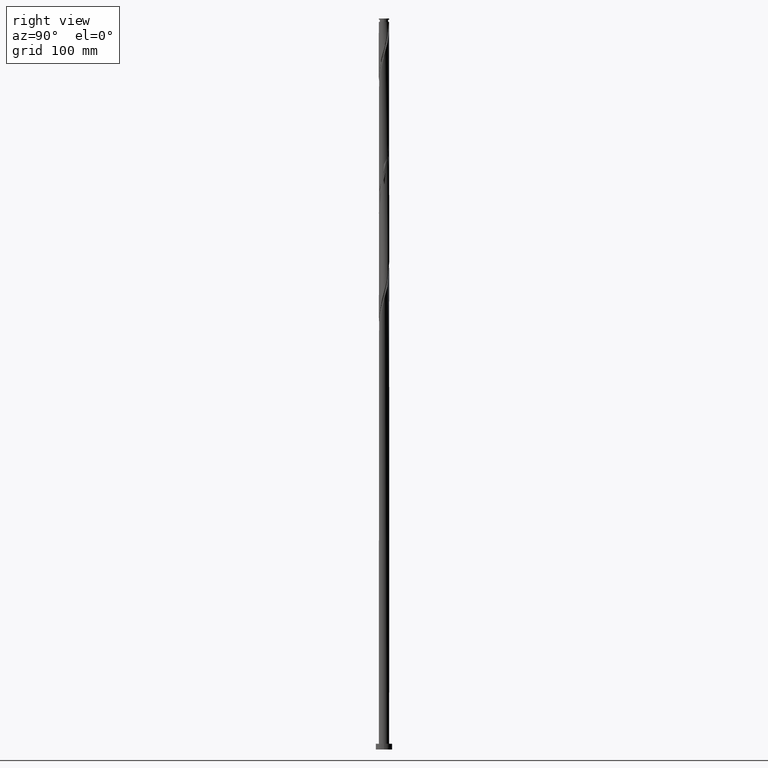
[diagram: clean part render]
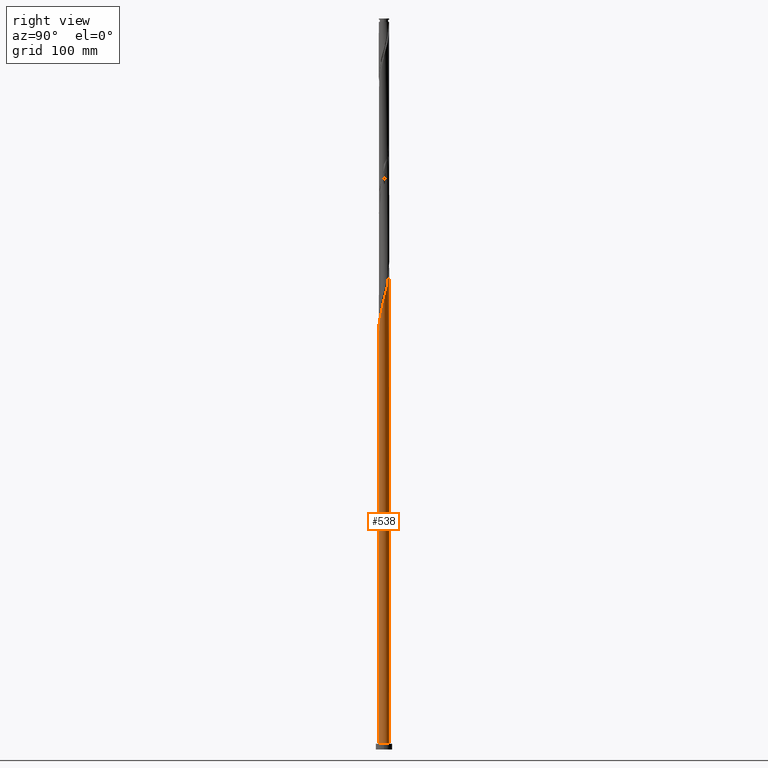
[diagram: same view with one face highlighted and labeled with its STEP entity id]
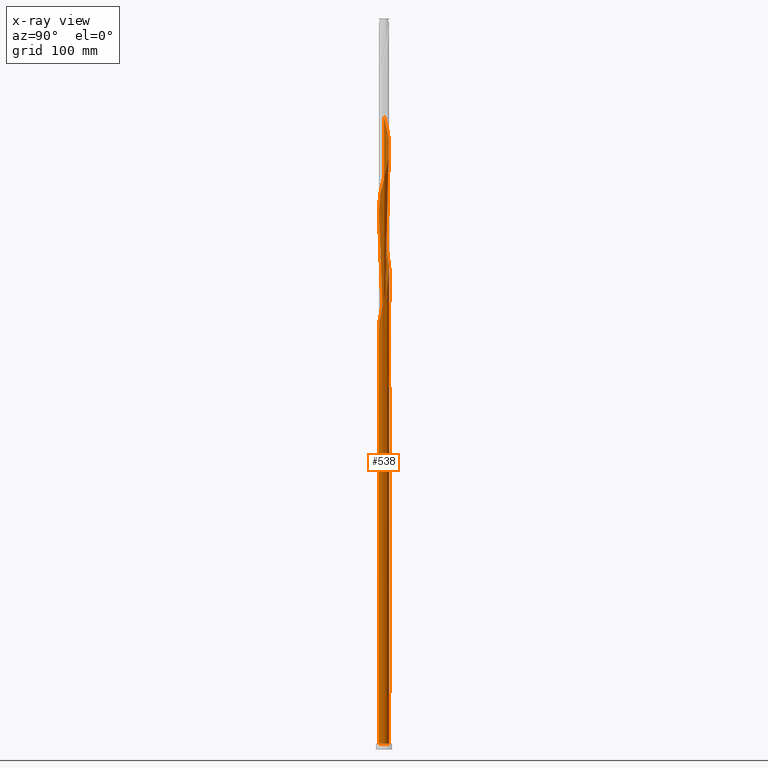
[diagram: x-ray of the same camera — body ghosted, the highlighted face saturated]
A machine part, right view. The second image highlights one B-rep face of the part: STEP entity #538.
The next image is the same camera in x-ray: the body ghosted, the highlighted face saturated — about 0% of this face is hidden behind the body in this view.
In plain terms, the highlighted cylindrical surface (bore or boss wall) has radius 4.5 mm, axis along (-0, -0, -1).
Its self-contained STEP definition (entity closure, byte-faithful):
#1 = CARTESIAN_POINT ( 'NONE',  ( -3.804945932574387513, -2.438496281464618498, 344.5328241358952823 ) ) ;
#4 = CARTESIAN_POINT ( 'NONE',  ( -1.951327360779627762, 4.076297240830688118, 322.9151770770716894 ) ) ;
#6 = DIRECTION ( 'NONE',  ( 0.000000000000000000, -0.000000000000000000, -1.000000000000000000 ) ) ;
#11 = CARTESIAN_POINT ( 'NONE',  ( -1.304135373323318081, 4.327020752501423040, 418.6504711947186479 ) ) ;
#26 = CARTESIAN_POINT ( 'NONE',  ( 4.188232013388924813, 1.697819267930281484, 498.9445888417775450 ) ) ;
#36 = CARTESIAN_POINT ( 'NONE',  ( -1.951327360779631981, -4.076297240830694335, 458.7975300182480964 ) ) ;
#48 = CARTESIAN_POINT ( 'NONE',  ( -4.238954249787265205, 1.566890083171638137, 434.0916476653071072 ) ) ;
#50 = CARTESIAN_POINT ( 'NONE',  ( 0.000000000000000000, 0.000000000000000000, 5.000000000000000000 ) ) ;
#61 = CARTESIAN_POINT ( 'NONE',  ( 1.690576670250395930, -4.170365753984312640, 472.6945888417775450 ) ) ;
#69 = CARTESIAN_POINT ( 'NONE',  ( -4.500000000000006217, 1.762771725222034300E-15, 545.0081447729659203 ) ) ;
#115 = CARTESIAN_POINT ( 'NONE',  ( 1.169084651843904865, 4.365445995697824877, 514.3857653123659475 ) ) ;
#119 = CARTESIAN_POINT ( 'NONE',  ( 2.779170205267879279, -3.563718652570996515, 372.3269417829540089 ) ) ;
#132 = CARTESIAN_POINT ( 'NONE',  ( 4.473812990118688049, 0.4847652312669875063, 389.3122359006010811 ) ) ;
#141 = CARTESIAN_POINT ( 'NONE',  ( -1.951327360779631981, -4.076297240830694335, 353.7975300182481533 ) ) ;
#148 = CARTESIAN_POINT ( 'NONE',  ( -2.779170205267879723, 3.563718652570996515, 319.8269417829541226 ) ) ;
#151 = CARTESIAN_POINT ( 'NONE',  ( 1.951327360779632869, 4.076297240830694335, 406.2975300182482101 ) ) ;
#168 = VERTEX_POINT ( 'NONE', #599 ) ;
#173 =( BOUNDED_CURVE ( )  B_SPLINE_CURVE ( 2, ( #433, #1700, #272, #1936, #502, #627, #1581, #2067, #1252, #1722, #481, #1890, #968, #4, #1900, #470, #1733, #805, #650, #949, #668 ),
 .UNSPECIFIED., .F., .T. ) 
 B_SPLINE_CURVE_WITH_KNOTS ( ( 3, 2, 2, 2, 2, 2, 2, 2, 2, 2, 3 ),
 ( 0.9295293573162903833, 0.9338235294117647189, 0.9411764705882352811, 0.9485294117647058432, 0.9558823529411765163, 0.9632352941176470784, 0.9705882352941176405, 0.9779411764705882026, 0.9852941176470588758, 0.9926470588235294379, 1.000000000000000000 ),
 .UNSPECIFIED. ) 
 CURVE ( )  GEOMETRIC_REPRESENTATION_ITEM ( )  RATIONAL_B_SPLINE_CURVE ( ( 0.9072066346053268004, 0.9068261157890937785, 0.9090909090909653489, 0.9052128875409962694, 0.9090909090909653489, 0.9052128875409962694, 0.9090909090909653489, 0.9052128875409962694, 0.9090909090909653489, 0.9052128875409962694, 0.9090909090909653489, 0.9052128875409962694, 0.9090909090909653489, 0.9052128875409962694, 0.9090909090909653489, 0.9052128875409962694, 0.9090909090909653489, 0.9052128875409962694, 0.9090909090909653489, 0.9052128875409962694, 0.9090909090909653489 ) ) 
 REPRESENTATION_ITEM ( '' )  );
#174 = CARTESIAN_POINT ( 'NONE',  ( 4.486713199802618846, -0.3455497977383251706, 491.2240006064834574 ) ) ;
#189 = CARTESIAN_POINT ( 'NONE',  ( -4.346823772686629006, 1.164097542822958742, 435.6357653123658906 ) ) ;
#199 = CARTESIAN_POINT ( 'NONE',  ( 2.979603469179447295, 3.372234150597175351, 506.6651770770715757 ) ) ;
#209 = CARTESIAN_POINT ( 'NONE',  ( 4.454693295585993695, -0.7613050024742795685, 489.6798829594246740 ) ) ;
#216 = VERTEX_POINT ( 'NONE', #1036 ) ;
#219 = CARTESIAN_POINT ( 'NONE',  ( -1.560206006311768201, -4.220871618264257386, 460.3416476653070504 ) ) ;
#221 = DIRECTION ( 'NONE',  ( 0.000000000000000000, 0.000000000000000000, 1.000000000000000000 ) ) ;
#229 = CARTESIAN_POINT ( 'NONE',  ( -4.346823772686629006, 1.164097542822958742, 540.6357653123658338 ) ) ;
#235 = VERTEX_POINT ( 'NONE', #2022 ) ;
#272 = CARTESIAN_POINT ( 'NONE',  ( -4.473812990118680055, 0.4847652312669873398, 339.9004711947186479 ) ) ;
#277 = LINE ( 'NONE', #1435, #695 ) ;
#285 = CARTESIAN_POINT ( 'NONE',  ( -4.454693295585993695, 0.7613050024742796795, 542.1798829594246172 ) ) ;
#288 = CARTESIAN_POINT ( 'NONE',  ( 0.4868420134686154976, -4.492979247498587902, 363.0622359006010811 ) ) ;
#298 = CARTESIAN_POINT ( 'NONE',  ( -0.3470301672521269865, -4.505934722956835614, 359.9740006064836280 ) ) ;
#311 = CARTESIAN_POINT ( 'NONE',  ( -0.7580574095480158148, -4.435690359327330690, 358.4298829594246172 ) ) ;
#317 = CARTESIAN_POINT ( 'NONE',  ( -3.082925670266514206, 3.278043518870946471, 321.3710594300127923 ) ) ;
#319 = CARTESIAN_POINT ( 'NONE',  ( -4.500000000000007105, 5.422763866572867830E-15, 335.0081447729658635 ) ) ;
#328 = CARTESIAN_POINT ( 'NONE',  ( -3.632771918171216807, 2.655742493267499782, 324.4592947241304728 ) ) ;
#331 = CARTESIAN_POINT ( 'NONE',  ( 3.878862701077282704, -2.319116601364103136, 483.5034123711894267 ) ) ;
#344 = CARTESIAN_POINT ( 'NONE',  ( -0.4868420134686149980, 4.492979247498587902, 415.5622359006011379 ) ) ;
#349 = CARTESIAN_POINT ( 'NONE',  ( -4.058908475432274621, 1.943003342267869638, 327.5475300182480396 ) ) ;
#352 = CARTESIAN_POINT ( 'NONE',  ( 0.06990592310824401967, -4.499456985227711314, 466.5181182535422977 ) ) ;
#361 = CARTESIAN_POINT ( 'NONE',  ( -4.428892876218131214, -0.8993250555363426768, 443.3563535476600350 ) ) ;
#373 = CARTESIAN_POINT ( 'NONE',  ( -3.386681135265150910, 2.992368385170897760, 427.9151770770716894 ) ) ;
#374 = EDGE_CURVE ( 'NONE', #454, #1556, #277, .T. ) ;
#383 = CARTESIAN_POINT ( 'NONE',  ( -1.304135373323318081, 4.327020752501423040, 523.6504711947188753 ) ) ;
#394 = AXIS2_PLACEMENT_3D ( 'NONE', #50, #221, #1814 ) ;
#396 = CARTESIAN_POINT ( 'NONE',  ( -3.632771918171216807, 2.655742493267499782, 534.4592947241304728 ) ) ;
#433 = CARTESIAN_POINT ( 'NONE',  ( -4.500000000000000000, -4.989540306984437354E-15, 341.7045623223539792 ) ) ;
#440 = CARTESIAN_POINT ( 'NONE',  ( -4.428892876218131214, -0.8993250555363426768, 338.3563535476599213 ) ) ;
#442 = ORIENTED_EDGE ( 'NONE', *, *, #1158, .F. ) ;
#447 = ORIENTED_EDGE ( 'NONE', *, *, #499, .F. ) ;
#449 = CARTESIAN_POINT ( 'NONE',  ( -3.082925670266514206, 3.278043518870946471, 531.3710594300127923 ) ) ;
#454 = VERTEX_POINT ( 'NONE', #319 ) ;
#460 = CARTESIAN_POINT ( 'NONE',  ( -4.238954249787265205, 1.566890083171638137, 539.0916476653069367 ) ) ;
#465 = CARTESIAN_POINT ( 'NONE',  ( 3.804945932574387957, 2.438496281464617610, 397.0328241358952823 ) ) ;
#470 = CARTESIAN_POINT ( 'NONE',  ( -1.169084651843902867, 4.365445995697816883, 319.8269417829540657 ) ) ;
#475 = CARTESIAN_POINT ( 'NONE',  ( 3.386681135265150022, -2.992368385170899092, 375.4151770770718599 ) ) ;
#481 = CARTESIAN_POINT ( 'NONE',  ( -2.979603469179440189, 3.372234150597171354, 327.5475300182480396 ) ) ;
#487 = CARTESIAN_POINT ( 'NONE',  ( 3.082925670266514651, -3.278043518870946027, 373.8710594300127923 ) ) ;
#497 = CARTESIAN_POINT ( 'NONE',  ( -1.690576670250396152, 4.170365753984312640, 420.1945888417775450 ) ) ;
#499 = EDGE_CURVE ( 'NONE', #454, #235, #664, .T. ) ;
#502 = CARTESIAN_POINT ( 'NONE',  ( -4.308562444803517799, 1.298572161733310137, 336.8122359006010811 ) ) ;
#510 = CARTESIAN_POINT ( 'NONE',  ( 4.473812990118688049, 0.4847652312669875063, 494.3122359006010242 ) ) ;
#512 = DIRECTION ( 'NONE',  ( 1.000000000000000000, 0.000000000000000000, 0.000000000000000000 ) ) ;
#519 = CARTESIAN_POINT ( 'NONE',  ( -3.632771918171216807, 2.655742493267499782, 429.4592947241305296 ) ) ;
#529 = CARTESIAN_POINT ( 'NONE',  ( -4.058908475432274621, 1.943003342267869638, 432.5475300182482101 ) ) ;
#538 = ADVANCED_FACE ( 'NONE', ( #1076 ), #1702, .T. ) ;
#541 = CARTESIAN_POINT ( 'NONE',  ( -3.804945932574387513, -2.438496281464618498, 449.5328241358953392 ) ) ;
#552 = ORIENTED_EDGE ( 'NONE', *, *, #1488, .F. ) ;
#555 = ORIENTED_EDGE ( 'NONE', *, *, #1848, .F. ) ;
#599 = CARTESIAN_POINT ( 'NONE',  ( -0.8954886933959651518, 4.410000000000003695, 312.1063535476598645 ) ) ;
#601 = ORIENTED_EDGE ( 'NONE', *, *, #1785, .T. ) ;
#611 = CARTESIAN_POINT ( 'NONE',  ( 4.518733104019251101, 0.07020540699763319625, 387.7681182535421840 ) ) ;
#617 = CARTESIAN_POINT ( 'NONE',  ( -3.878862701077282704, 2.319116601364103136, 536.0034123711893699 ) ) ;
#619 = CARTESIAN_POINT ( 'NONE',  ( 0.8954886933959658180, -4.410000000000003695, 364.6063535476598645 ) ) ;
#627 = CARTESIAN_POINT ( 'NONE',  ( -4.188232013388915043, 1.697819267930278375, 335.2681182535422408 ) ) ;
#634 = CARTESIAN_POINT ( 'NONE',  ( 4.428892876218131214, 0.8993250555363421217, 390.8563535476600350 ) ) ;
#650 = CARTESIAN_POINT ( 'NONE',  ( 0.06990592310824471356, 4.499456985227704209, 315.1945888417775450 ) ) ;
#653 = CARTESIAN_POINT ( 'NONE',  ( -4.346823772686629006, 1.164097542822958742, 330.6357653123657201 ) ) ;
#656 = CARTESIAN_POINT ( 'NONE',  ( -1.560206006311768201, -4.220871618264257386, 355.3416476653068798 ) ) ;
#664 =( BOUNDED_CURVE ( )  B_SPLINE_CURVE ( 2, ( #1443, #1238, #1079, #440, #1257, #934, #2052, #1, #1554, #920, #1895, #954, #1577, #141, #656, #2041, #311, #298, #1717, #288, #619, #1281, #1269, #2032, #1070, #119, #487, #475, #1884, #773, #1110, #791, #1565, #1400, #1745, #611, #132, #634, #783, #1411, #1737, #465, #1090, #1728, #1420, #2064, #1101, #151, #802, #1944, #712, #1323, #1453, #344, #840, #11, #497, #1304, #666, #1789, #848, #373, #519, #1485, #529, #48, #189, #982, #1473, #1966, #1148, #361, #702, #1002, #1756, #541, #1615, #677, #1010, #1646, #1635, #36, #219, #859, #1160, #1799, #352, #1920, #1495, #829, #61, #1291, #1933, #1119, #688, #1463, #1313, #331, #972, #1605, #1956, #209, #174, #820, #510, #1128, #1767, #26, #1138, #1776, #993, #1625, #199, #872, #1245, #1811, #1407, #115, #1515, #1880, #2039, #767, #1022, #383, #1359, #1655, #720, #1550, #449, #1870, #396, #617, #1344, #460, #229, #285, #1504, #1832, #69 ),
 .UNSPECIFIED., .F., .T. ) 
 B_SPLINE_CURVE_WITH_KNOTS ( ( 3, 2, 2, 2, 2, 2, 2, 2, 2, 2, 2, 2, 2, 2, 2, 2, 2, 2, 2, 2, 2, 2, 2, 2, 2, 2, 2, 2, 2, 2, 2, 2, 2, 2, 2, 2, 2, 2, 2, 2, 2, 2, 2, 2, 2, 2, 2, 2, 2, 2, 2, 2, 2, 2, 2, 2, 2, 2, 2, 2, 2, 2, 2, 2, 2, 2, 2, 2, 2, 3 ),
 ( 0.05452935731629055677, 0.05882352941176471894, 0.06617647058823528106, 0.07352941176470584317, 0.08088235294117651630, 0.08823529411764707842, 0.09558823529411764053, 0.1029411764705882026, 0.1102941176470588758, 0.1176470588235294379, 0.1250000000000000000, 0.1323529411764705621, 0.1397058823529411242, 0.1470588235294117974, 0.1544117647058823595, 0.1617647058823529216, 0.1691176470588234837, 0.1764705882352941568, 0.1838235294117647189, 0.1911764705882352811, 0.1985294117647058432, 0.2058823529411765163, 0.2132352941176470784, 0.2205882352941176405, 0.2279411764705882026, 0.2352941176470588758, 0.2426470588235294379, 0.2500000000000000000, 0.2573529411764705621, 0.2647058823529411242, 0.2720588235294117974, 0.2794117647058823595, 0.2867647058823529216, 0.2941176470588234837, 0.3014705882352941568, 0.3088235294117647189, 0.3161764705882352811, 0.3235294117647058432, 0.3308823529411765163, 0.3382352941176470784, 0.3455882352941176405, 0.3529411764705882026, 0.3602941176470588758, 0.3676470588235294379, 0.3750000000000000000, 0.3823529411764705621, 0.3897058823529411242, 0.3970588235294117974, 0.4044117647058823595, 0.4117647058823529216, 0.4191176470588234837, 0.4264705882352941568, 0.4338235294117647189, 0.4411764705882352811, 0.4485294117647058432, 0.4558823529411765163, 0.4632352941176470784, 0.4705882352941176405, 0.4779411764705882026, 0.4852941176470588758, 0.4926470588235294379, 0.5000000000000000000, 0.5073529411764705621, 0.5147058823529411242, 0.5220588235294116863, 0.5294117647058823595, 0.5367647058823529216, 0.5441176470588235947, 0.5514705882352941568, 0.5545293573162898282 ),
 .UNSPECIFIED. ) 
 CURVE ( )  GEOMETRIC_REPRESENTATION_ITEM ( )  RATIONAL_B_SPLINE_CURVE ( ( 0.9072066346053333508, 0.9068261157891003288, 0.9090909090909716772, 0.9052128875410025977, 0.9090909090909716772, 0.9052128875410025977, 0.9090909090909716772, 0.9052128875410025977, 0.9090909090909716772, 0.9052128875410025977, 0.9090909090909716772, 0.9052128875410025977, 0.9090909090909716772, 0.9052128875410025977, 0.9090909090909716772, 0.9052128875410025977, 0.9090909090909716772, 0.9052128875410025977, 0.9090909090909716772, 0.9052128875410025977, 0.9090909090909716772, 0.9052128875410025977, 0.9090909090909716772, 0.9052128875410025977, 0.9090909090909716772, 0.9052128875410025977, 0.9090909090909716772, 0.9052128875410025977, 0.9090909090909716772, 0.9052128875410025977, 0.9090909090909716772, 0.9052128875410025977, 0.9090909090909716772, 0.9052128875410025977, 0.9090909090909716772, 0.9052128875410025977, 0.9090909090909716772, 0.9052128875410025977, 0.9090909090909716772, 0.9052128875410025977, 0.9090909090909716772, 0.9052128875410025977, 0.9090909090909716772, 0.9052128875410025977, 0.9090909090909716772, 0.9052128875410025977, 0.9090909090909716772, 0.9052128875410025977, 0.9090909090909716772, 0.9052128875410025977, 0.9090909090909716772, 0.9052128875410025977, 0.9090909090909716772, 0.9052128875410025977, 0.9090909090909716772, 0.9052128875410025977, 0.9090909090909716772, 0.9052128875410025977, 0.9090909090909716772, 0.9052128875410025977, 0.9090909090909716772, 0.9052128875410025977, 0.9090909090909716772, 0.9052128875410025977, 0.9090909090909716772, 0.9052128875410025977, 0.9090909090909716772, 0.9052128875410025977, 0.9090909090909716772, 0.9052128875410025977, 0.9090909090909716772, 0.9052128875410025977, 0.9090909090909716772, 0.9052128875410025977, 0.9090909090909716772, 0.9052128875410025977, 0.9090909090909716772, 0.9052128875410025977, 0.9090909090909716772, 0.9052128875410025977, 0.9090909090909716772, 0.9052128875410025977, 0.9090909090909716772, 0.9052128875410025977, 0.9090909090909716772, 0.9052128875410025977, 0.9090909090909716772, 0.9052128875410025977, 0.9090909090909716772, 0.9052128875410025977, 0.9090909090909716772, 0.9052128875410025977, 0.9090909090909716772, 0.9052128875410025977, 0.9090909090909716772, 0.9052128875410025977, 0.9090909090909716772, 0.9052128875410025977, 0.9090909090909716772, 0.9052128875410025977, 0.9090909090909716772, 0.9052128875410025977, 0.9090909090909716772, 0.9052128875410025977, 0.9090909090909716772, 0.9052128875410025977, 0.9090909090909716772, 0.9052128875410025977, 0.9090909090909716772, 0.9052128875410025977, 0.9090909090909716772, 0.9052128875410025977, 0.9090909090909716772, 0.9052128875410025977, 0.9090909090909716772, 0.9052128875410025977, 0.9090909090909716772, 0.9052128875410025977, 0.9090909090909716772, 0.9052128875410025977, 0.9090909090909716772, 0.9052128875410025977, 0.9090909090909716772, 0.9052128875410025977, 0.9090909090909716772, 0.9052128875410025977, 0.9090909090909716772, 0.9052128875410025977, 0.9090909090909716772, 0.9052128875410025977, 0.9090909090909716772, 0.9052128875410025977, 0.9090909090909716772, 0.9052128875410025977, 0.9090909090909716772, 0.9052128875410025977, 0.9090909090909716772, 0.9074776808428743902, 0.9072066346053333508 ) ) 
 REPRESENTATION_ITEM ( '' )  );
#666 = CARTESIAN_POINT ( 'NONE',  ( -2.428094086222676307, 3.788714704019099155, 423.2828241358952255 ) ) ;
#668 = CARTESIAN_POINT ( 'NONE',  ( 0.8954886933959668172, 4.409999999999997478, 312.1063535476598645 ) ) ;
#677 = CARTESIAN_POINT ( 'NONE',  ( -3.292086981555674363, -3.096133228787609770, 452.6210594300130197 ) ) ;
#688 = CARTESIAN_POINT ( 'NONE',  ( 3.082925670266514651, -3.278043518870946027, 478.8710594300129060 ) ) ;
#691 = CARTESIAN_POINT ( 'NONE',  ( 0.000000000000000000, 0.000000000000000000, 5.000000000000000000 ) ) ;
#695 = VECTOR ( 'NONE', #964, 1000.000000000000000 ) ;
#702 = CARTESIAN_POINT ( 'NONE',  ( -4.308562444803525793, -1.298572161733311026, 444.9004711947187616 ) ) ;
#705 = AXIS2_PLACEMENT_3D ( 'NONE', #799, #6, #1763 ) ;
#712 = CARTESIAN_POINT ( 'NONE',  ( 0.7580574095480161478, 4.435690359327330690, 410.9298829594246172 ) ) ;
#720 = CARTESIAN_POINT ( 'NONE',  ( -2.428094086222676307, 3.788714704019099155, 528.2828241358953392 ) ) ;
#767 = CARTESIAN_POINT ( 'NONE',  ( -0.4868420134686149980, 4.492979247498587902, 520.5622359006010811 ) ) ;
#772 = VECTOR ( 'NONE', #1476, 1000.000000000000000 ) ;
#773 = CARTESIAN_POINT ( 'NONE',  ( 3.878862701077282704, -2.319116601364103136, 378.5034123711894267 ) ) ;
#783 = CARTESIAN_POINT ( 'NONE',  ( 4.308562444803525793, 1.298572161733309693, 392.4004711947187616 ) ) ;
#791 = CARTESIAN_POINT ( 'NONE',  ( 4.238954249787265205, -1.566890083171638803, 381.5916476653069935 ) ) ;
#799 = CARTESIAN_POINT ( 'NONE',  ( 0.000000000000000000, 0.000000000000000000, 312.1063535476598645 ) ) ;
#802 = CARTESIAN_POINT ( 'NONE',  ( 1.560206006311770421, 4.220871618264257386, 407.8416476653070504 ) ) ;
#805 = CARTESIAN_POINT ( 'NONE',  ( -0.3470301672521248770, 4.505934722956829397, 316.7387064888362715 ) ) ;
#808 = CARTESIAN_POINT ( 'NONE',  ( -0.8954886933959651518, 4.410000000000003695, 312.1063535476598076 ) ) ;
#820 = CARTESIAN_POINT ( 'NONE',  ( 4.518733104019251101, 0.07020540699763319625, 492.7681182535422408 ) ) ;
#829 = CARTESIAN_POINT ( 'NONE',  ( 1.304135373323318303, -4.327020752501423040, 471.1504711947189321 ) ) ;
#840 = CARTESIAN_POINT ( 'NONE',  ( -0.8954886933959652628, 4.410000000000003695, 417.1063535476599782 ) ) ;
#848 = CARTESIAN_POINT ( 'NONE',  ( -3.082925670266514206, 3.278043518870946471, 426.3710594300129060 ) ) ;
#859 = CARTESIAN_POINT ( 'NONE',  ( -1.169084651843906419, -4.365445995697824877, 461.8857653123658338 ) ) ;
#872 = CARTESIAN_POINT ( 'NONE',  ( 2.667119956803216674, 3.648335072406747592, 508.2092947241304728 ) ) ;
#920 = CARTESIAN_POINT ( 'NONE',  ( -3.292086981555674363, -3.096133228787609770, 347.6210594300128491 ) ) ;
#931 = CIRCLE ( 'NONE', #705, 4.500000000000000000 ) ;
#934 = CARTESIAN_POINT ( 'NONE',  ( -4.188232013388924813, -1.697819267930281040, 341.4445888417776018 ) ) ;
#940 = DIRECTION ( 'NONE',  ( -1.000000000000000000, 0.000000000000000000, 0.000000000000000000 ) ) ;
#941 = ORIENTED_EDGE ( 'NONE', *, *, #374, .T. ) ;
#949 = CARTESIAN_POINT ( 'NONE',  ( 0.4868420134686145540, 4.492979247498578133, 313.6504711947188184 ) ) ;
#953 = AXIS2_PLACEMENT_3D ( 'NONE', #1562, #1994, #940 ) ;
#954 = CARTESIAN_POINT ( 'NONE',  ( -2.667119956803218006, -3.648335072406747148, 350.7092947241305865 ) ) ;
#959 = CARTESIAN_POINT ( 'NONE',  ( -3.878862701077282704, 2.319116601364103136, 326.0034123711893699 ) ) ;
#963 = CIRCLE ( 'NONE', #394, 4.500000000000000000 ) ;
#964 = DIRECTION ( 'NONE',  ( -0.000000000000000000, -0.000000000000000000, -1.000000000000000000 ) ) ;
#968 = CARTESIAN_POINT ( 'NONE',  ( -2.309223658791419442, 3.862316156618713858, 324.4592947241304159 ) ) ;
#972 = CARTESIAN_POINT ( 'NONE',  ( 4.058908475432274621, -1.943003342267870304, 485.0475300182482101 ) ) ;
#978 = CARTESIAN_POINT ( 'NONE',  ( -1.690576670250396152, 4.170365753984312640, 315.1945888417775450 ) ) ;
#982 = CARTESIAN_POINT ( 'NONE',  ( -4.454693295585993695, 0.7613050024742796795, 437.1798829594246172 ) ) ;
#993 = CARTESIAN_POINT ( 'NONE',  ( 3.548516457065029606, 2.767314755126114356, 503.5769417829540657 ) ) ;
#1002 = CARTESIAN_POINT ( 'NONE',  ( -4.188232013388924813, -1.697819267930281040, 446.4445888417776587 ) ) ;
#1010 = CARTESIAN_POINT ( 'NONE',  ( -2.979603469179447295, -3.372234150597175795, 454.1651770770716894 ) ) ;
#1022 = CARTESIAN_POINT ( 'NONE',  ( -0.8954886933959652628, 4.410000000000003695, 522.1063535476598645 ) ) ;
#1036 = CARTESIAN_POINT ( 'NONE',  ( 0.8954886933959668172, 4.409999999999997478, 312.1063535476598645 ) ) ;
#1048 = EDGE_CURVE ( 'NONE', #168, #216, #931, .T. ) ;
#1070 = CARTESIAN_POINT ( 'NONE',  ( 2.428094086222677195, -3.788714704019096935, 370.7828241358951118 ) ) ;
#1076 = FACE_OUTER_BOUND ( 'NONE', #2043, .T. ) ;
#1079 = CARTESIAN_POINT ( 'NONE',  ( -4.473812990118687161, -0.4847652312669868957, 336.8122359006010811 ) ) ;
#1090 = CARTESIAN_POINT ( 'NONE',  ( 3.548516457065029606, 2.767314755126114356, 398.5769417829540657 ) ) ;
#1101 = CARTESIAN_POINT ( 'NONE',  ( 2.309223658791424327, 3.862316156618720964, 404.7534123711893130 ) ) ;
#1110 = CARTESIAN_POINT ( 'NONE',  ( 4.058908475432274621, -1.943003342267870304, 380.0475300182480964 ) ) ;
#1118 = CIRCLE ( 'NONE', #1723, 4.500000000000000000 ) ;
#1119 = CARTESIAN_POINT ( 'NONE',  ( 2.779170205267879279, -3.563718652570996515, 477.3269417829540657 ) ) ;
#1128 = CARTESIAN_POINT ( 'NONE',  ( 4.428892876218131214, 0.8993250555363421217, 495.8563535476599782 ) ) ;
#1138 = CARTESIAN_POINT ( 'NONE',  ( 3.996588972981654386, 2.068157774697448659, 500.4887064888363852 ) ) ;
#1148 = CARTESIAN_POINT ( 'NONE',  ( -4.473812990118687161, -0.4847652312669868957, 441.8122359006011379 ) ) ;
#1158 = EDGE_CURVE ( 'NONE', #168, #454, #1294, .T. ) ;
#1160 = CARTESIAN_POINT ( 'NONE',  ( -0.7580574095480158148, -4.435690359327330690, 463.4298829594246740 ) ) ;
#1238 = CARTESIAN_POINT ( 'NONE',  ( -4.500000000000005329, -0.2430899265566993372, 335.9120640049786175 ) ) ;
#1245 = CARTESIAN_POINT ( 'NONE',  ( 2.309223658791424327, 3.862316156618720964, 509.7534123711893699 ) ) ;
#1252 = CARTESIAN_POINT ( 'NONE',  ( -3.548516457065023832, 2.767314755126108583, 330.6357653123657769 ) ) ;
#1257 = CARTESIAN_POINT ( 'NONE',  ( -4.308562444803525793, -1.298572161733311026, 339.9004711947187047 ) ) ;
#1262 = CARTESIAN_POINT ( 'NONE',  ( -4.500000000000000000, 0.000000000000000000, 5.000000000000000000 ) ) ;
#1269 = CARTESIAN_POINT ( 'NONE',  ( 1.690576670250395930, -4.170365753984312640, 367.6945888417774881 ) ) ;
#1276 = CARTESIAN_POINT ( 'NONE',  ( -4.454693295585993695, 0.7613050024742796795, 332.1798829594245603 ) ) ;
#1281 = CARTESIAN_POINT ( 'NONE',  ( 1.304135373323318303, -4.327020752501423040, 366.1504711947187616 ) ) ;
#1291 = CARTESIAN_POINT ( 'NONE',  ( 2.077017967177474667, -4.013710755467202240, 474.2387064888364421 ) ) ;
#1294 =( BOUNDED_CURVE ( )  B_SPLINE_CURVE ( 2, ( #808, #1583, #978, #1611, #1441, #148, #317, #1751, #328, #959, #349, #2070, #653, #1276, #1913, #1892, #1459 ),
 .UNSPECIFIED., .F., .T. ) 
 B_SPLINE_CURVE_WITH_KNOTS ( ( 3, 2, 2, 2, 2, 2, 2, 2, 3 ),
 ( 0.000000000000000000, 0.007352941176470562980, 0.01470588235294112596, 0.02205882352941179736, 0.02941176470588235600, 0.03676470588235292158, 0.04411764705882348370, 0.05147058823529415683, 0.05452935731629056371 ),
 .UNSPECIFIED. ) 
 CURVE ( )  GEOMETRIC_REPRESENTATION_ITEM ( )  RATIONAL_B_SPLINE_CURVE ( ( 0.9090909090909716772, 0.9052128875410025977, 0.9090909090909716772, 0.9052128875410025977, 0.9090909090909716772, 0.9052128875410025977, 0.9090909090909716772, 0.9052128875410025977, 0.9090909090909716772, 0.9052128875410025977, 0.9090909090909716772, 0.9052128875410025977, 0.9090909090909716772, 0.9052128875410025977, 0.9090909090909716772, 0.9074776808428739461, 0.9072066346053333508 ) ) 
 REPRESENTATION_ITEM ( '' )  );
#1304 = CARTESIAN_POINT ( 'NONE',  ( -2.077017967177474667, 4.013710755467202240, 421.7387064888364989 ) ) ;
#1313 = CARTESIAN_POINT ( 'NONE',  ( 3.632771918171216807, -2.655742493267499782, 481.9592947241305865 ) ) ;
#1316 = DIRECTION ( 'NONE',  ( 0.000000000000000000, 0.000000000000000000, 1.000000000000000000 ) ) ;
#1323 = CARTESIAN_POINT ( 'NONE',  ( 0.3470301672521278191, 4.505934722956835614, 412.4740006064835711 ) ) ;
#1344 = CARTESIAN_POINT ( 'NONE',  ( -4.058908475432274621, 1.943003342267869638, 537.5475300182480396 ) ) ;
#1347 = CARTESIAN_POINT ( 'NONE',  ( -4.500000000000000000, 0.000000000000000000, 630.0000000000000000 ) ) ;
#1359 = CARTESIAN_POINT ( 'NONE',  ( -1.690576670250396152, 4.170365753984312640, 525.1945888417775450 ) ) ;
#1400 = CARTESIAN_POINT ( 'NONE',  ( 4.454693295585993695, -0.7613050024742795685, 384.6798829594246172 ) ) ;
#1407 = CARTESIAN_POINT ( 'NONE',  ( 1.560206006311770421, 4.220871618264257386, 512.8416476653069367 ) ) ;
#1411 = CARTESIAN_POINT ( 'NONE',  ( 4.188232013388924813, 1.697819267930281484, 393.9445888417776018 ) ) ;
#1420 = CARTESIAN_POINT ( 'NONE',  ( 2.979603469179447295, 3.372234150597175351, 401.6651770770716894 ) ) ;
#1435 = CARTESIAN_POINT ( 'NONE',  ( -4.500000000000000000, 0.000000000000000000, 630.0000000000000000 ) ) ;
#1441 = CARTESIAN_POINT ( 'NONE',  ( -2.428094086222676307, 3.788714704019099155, 318.2828241358951686 ) ) ;
#1443 = CARTESIAN_POINT ( 'NONE',  ( -4.500000000000007105, 5.422763866572867830E-15, 335.0081447729658635 ) ) ;
#1453 = CARTESIAN_POINT ( 'NONE',  ( -0.06990592310824540745, 4.499456985227711314, 414.0181182535422977 ) ) ;
#1459 = CARTESIAN_POINT ( 'NONE',  ( -4.500000000000007105, 5.422763866572867830E-15, 335.0081447729658635 ) ) ;
#1463 = CARTESIAN_POINT ( 'NONE',  ( 3.386681135265150022, -2.992368385170899092, 480.4151770770716894 ) ) ;
#1473 = CARTESIAN_POINT ( 'NONE',  ( -4.486713199802618846, 0.3455497977383236163, 438.7240006064834574 ) ) ;
#1476 = DIRECTION ( 'NONE',  ( -0.000000000000000000, -0.000000000000000000, -1.000000000000000000 ) ) ;
#1485 = CARTESIAN_POINT ( 'NONE',  ( -3.878862701077282704, 2.319116601364103136, 431.0034123711894836 ) ) ;
#1488 = EDGE_CURVE ( 'NONE', #1507, #216, #173, .T. ) ;
#1495 = CARTESIAN_POINT ( 'NONE',  ( 0.8954886933959658180, -4.410000000000003695, 469.6063535476599213 ) ) ;
#1504 = CARTESIAN_POINT ( 'NONE',  ( -4.486713199802618846, 0.3455497977383236163, 543.7240006064834006 ) ) ;
#1507 = VERTEX_POINT ( 'NONE', #1760 ) ;
#1515 = CARTESIAN_POINT ( 'NONE',  ( 0.7580574095480161478, 4.435690359327330690, 515.9298829594245035 ) ) ;
#1550 = CARTESIAN_POINT ( 'NONE',  ( -2.779170205267879723, 3.563718652570996515, 529.8269417829542363 ) ) ;
#1554 = CARTESIAN_POINT ( 'NONE',  ( -3.548516457065029606, -2.767314755126113024, 346.0769417829538952 ) ) ;
#1556 = VERTEX_POINT ( 'NONE', #1262 ) ;
#1562 = CARTESIAN_POINT ( 'NONE',  ( 0.000000000000000000, 0.000000000000000000, 630.0000000000000000 ) ) ;
#1565 = CARTESIAN_POINT ( 'NONE',  ( 4.346823772686629006, -1.164097542822956965, 383.1357653123658338 ) ) ;
#1570 = ORIENTED_EDGE ( 'NONE', *, *, #1694, .T. ) ;
#1577 = CARTESIAN_POINT ( 'NONE',  ( -2.309223658791425660, -3.862316156618718743, 352.2534123711893130 ) ) ;
#1581 = CARTESIAN_POINT ( 'NONE',  ( -3.996588972981646393, 2.068157774697445550, 333.7240006064834574 ) ) ;
#1583 = CARTESIAN_POINT ( 'NONE',  ( -1.304135373323318081, 4.327020752501423040, 313.6504711947187616 ) ) ;
#1605 = CARTESIAN_POINT ( 'NONE',  ( 4.238954249787265205, -1.566890083171638803, 486.5916476653071641 ) ) ;
#1611 = CARTESIAN_POINT ( 'NONE',  ( -2.077017967177474667, 4.013710755467202240, 316.7387064888363284 ) ) ;
#1615 = CARTESIAN_POINT ( 'NONE',  ( -3.548516457065029606, -2.767314755126113024, 451.0769417829540657 ) ) ;
#1625 = CARTESIAN_POINT ( 'NONE',  ( 3.292086981555674363, 3.096133228787609326, 505.1210594300128491 ) ) ;
#1635 = CARTESIAN_POINT ( 'NONE',  ( -2.309223658791425660, -3.862316156618718743, 457.2534123711894267 ) ) ;
#1646 = CARTESIAN_POINT ( 'NONE',  ( -2.667119956803218006, -3.648335072406747148, 455.7092947241305865 ) ) ;
#1655 = CARTESIAN_POINT ( 'NONE',  ( -2.077017967177474667, 4.013710755467202240, 526.7387064888365558 ) ) ;
#1687 = VERTEX_POINT ( 'NONE', #1770 ) ;
#1694 = EDGE_CURVE ( 'NONE', #1556, #1687, #963, .T. ) ;
#1700 = CARTESIAN_POINT ( 'NONE',  ( -4.500000000000001776, 0.2430899265566899003, 340.8006430903412820 ) ) ;
#1702 = CYLINDRICAL_SURFACE ( 'NONE', #953, 4.500000000000000000 ) ;
#1717 = CARTESIAN_POINT ( 'NONE',  ( 0.06990592310824401967, -4.499456985227711314, 361.5181182535422408 ) ) ;
#1722 = CARTESIAN_POINT ( 'NONE',  ( -3.292086981555668590, 3.096133228787603553, 329.0916476653068798 ) ) ;
#1723 = AXIS2_PLACEMENT_3D ( 'NONE', #691, #1316, #512 ) ;
#1728 = CARTESIAN_POINT ( 'NONE',  ( 3.292086981555674363, 3.096133228787609326, 400.1210594300129060 ) ) ;
#1733 = CARTESIAN_POINT ( 'NONE',  ( -0.7580574095480138164, 4.435690359327320920, 318.2828241358951686 ) ) ;
#1737 = CARTESIAN_POINT ( 'NONE',  ( 3.996588972981654386, 2.068157774697448659, 395.4887064888364421 ) ) ;
#1745 = CARTESIAN_POINT ( 'NONE',  ( 4.486713199802618846, -0.3455497977383251706, 386.2240006064835143 ) ) ;
#1751 = CARTESIAN_POINT ( 'NONE',  ( -3.386681135265150910, 2.992368385170897760, 322.9151770770718031 ) ) ;
#1756 = CARTESIAN_POINT ( 'NONE',  ( -3.996588972981654386, -2.068157774697449991, 447.9887064888364421 ) ) ;
#1760 = CARTESIAN_POINT ( 'NONE',  ( -4.500000000000000000, -4.989540306984436565E-15, 341.7045623223539792 ) ) ;
#1763 = DIRECTION ( 'NONE',  ( -1.000000000000000000, 0.000000000000000000, 0.000000000000000000 ) ) ;
#1767 = CARTESIAN_POINT ( 'NONE',  ( 4.308562444803525793, 1.298572161733309693, 497.4004711947187047 ) ) ;
#1768 = ORIENTED_EDGE ( 'NONE', *, *, #374, .F. ) ;
#1770 = CARTESIAN_POINT ( 'NONE',  ( 4.500000000000000000, 0.000000000000000000, 5.000000000000000000 ) ) ;
#1776 = CARTESIAN_POINT ( 'NONE',  ( 3.804945932574387957, 2.438496281464617610, 502.0328241358952255 ) ) ;
#1785 = EDGE_CURVE ( 'NONE', #1687, #1556, #1118, .T. ) ;
#1789 = CARTESIAN_POINT ( 'NONE',  ( -2.779170205267879723, 3.563718652570996515, 424.8269417829541226 ) ) ;
#1799 = CARTESIAN_POINT ( 'NONE',  ( -0.3470301672521269865, -4.505934722956835614, 464.9740006064835711 ) ) ;
#1801 = LINE ( 'NONE', #1347, #772 ) ;
#1811 = CARTESIAN_POINT ( 'NONE',  ( 1.951327360779632869, 4.076297240830694335, 511.2975300182480964 ) ) ;
#1814 = DIRECTION ( 'NONE',  ( 1.000000000000000000, 0.000000000000000000, 0.000000000000000000 ) ) ;
#1832 = CARTESIAN_POINT ( 'NONE',  ( -4.500000000000003553, 0.1730303454946037489, 544.3647390209060859 ) ) ;
#1848 = EDGE_CURVE ( 'NONE', #235, #1507, #1801, .T. ) ;
#1870 = CARTESIAN_POINT ( 'NONE',  ( -3.386681135265150910, 2.992368385170897760, 532.9151770770720304 ) ) ;
#1880 = CARTESIAN_POINT ( 'NONE',  ( 0.3470301672521278191, 4.505934722956835614, 517.4740006064836280 ) ) ;
#1884 = CARTESIAN_POINT ( 'NONE',  ( 3.632771918171216807, -2.655742493267499782, 376.9592947241305296 ) ) ;
#1890 = CARTESIAN_POINT ( 'NONE',  ( -2.667119956803212677, 3.648335072406740931, 326.0034123711893130 ) ) ;
#1892 = CARTESIAN_POINT ( 'NONE',  ( -4.500000000000005329, 0.1730303454945626429, 334.3647390209061996 ) ) ;
#1895 = CARTESIAN_POINT ( 'NONE',  ( -2.979603469179447295, -3.372234150597175795, 349.1651770770716894 ) ) ;
#1900 = CARTESIAN_POINT ( 'NONE',  ( -1.560206006311764870, 4.220871618264250280, 321.3710594300127923 ) ) ;
#1913 = CARTESIAN_POINT ( 'NONE',  ( -4.486713199802618846, 0.3455497977383236163, 333.7240006064834574 ) ) ;
#1920 = CARTESIAN_POINT ( 'NONE',  ( 0.4868420134686154976, -4.492979247498587902, 468.0622359006011379 ) ) ;
#1933 = CARTESIAN_POINT ( 'NONE',  ( 2.428094086222677195, -3.788714704019096935, 475.7828241358951686 ) ) ;
#1936 = CARTESIAN_POINT ( 'NONE',  ( -4.428892876218122332, 0.8993250555363423437, 338.3563535476598076 ) ) ;
#1944 = CARTESIAN_POINT ( 'NONE',  ( 1.169084651843904865, 4.365445995697824877, 409.3857653123658338 ) ) ;
#1946 = ORIENTED_EDGE ( 'NONE', *, *, #1048, .T. ) ;
#1956 = CARTESIAN_POINT ( 'NONE',  ( 4.346823772686629006, -1.164097542822956965, 488.1357653123658338 ) ) ;
#1966 = CARTESIAN_POINT ( 'NONE',  ( -4.518733104019251101, -0.07020540699763158643, 440.2681182535422977 ) ) ;
#1994 = DIRECTION ( 'NONE',  ( -0.000000000000000000, -0.000000000000000000, -1.000000000000000000 ) ) ;
#2022 = CARTESIAN_POINT ( 'NONE',  ( -4.500000000000006217, 1.762771725222034498E-15, 545.0081447729659203 ) ) ;
#2032 = CARTESIAN_POINT ( 'NONE',  ( 2.077017967177474667, -4.013710755467202240, 369.2387064888363284 ) ) ;
#2039 = CARTESIAN_POINT ( 'NONE',  ( -0.06990592310824540745, 4.499456985227711314, 519.0181182535424114 ) ) ;
#2041 = CARTESIAN_POINT ( 'NONE',  ( -1.169084651843906419, -4.365445995697824877, 356.8857653123658906 ) ) ;
#2043 = EDGE_LOOP ( 'NONE', ( #555, #447, #941, #1570, #601, #1768, #442, #1946, #552 ) ) ;
#2052 = CARTESIAN_POINT ( 'NONE',  ( -3.996588972981654386, -2.068157774697449991, 342.9887064888363284 ) ) ;
#2064 = CARTESIAN_POINT ( 'NONE',  ( 2.667119956803216674, 3.648335072406747592, 403.2092947241305296 ) ) ;
#2067 = CARTESIAN_POINT ( 'NONE',  ( -3.804945932574380407, 2.438496281464615389, 332.1798829594245603 ) ) ;
#2070 = CARTESIAN_POINT ( 'NONE',  ( -4.238954249787265205, 1.566890083171638137, 329.0916476653069367 ) ) ;